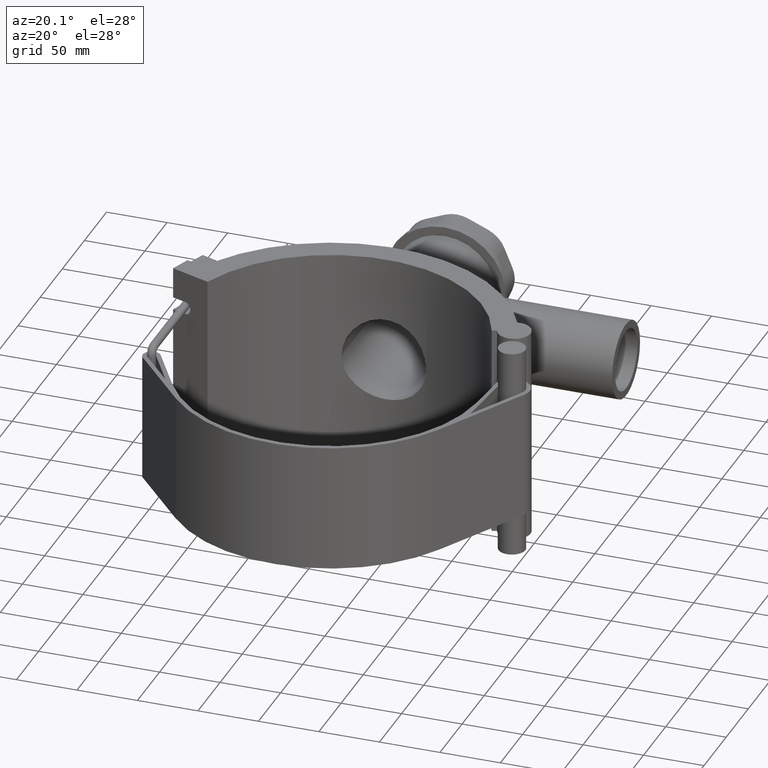
[diagram: clean part render]
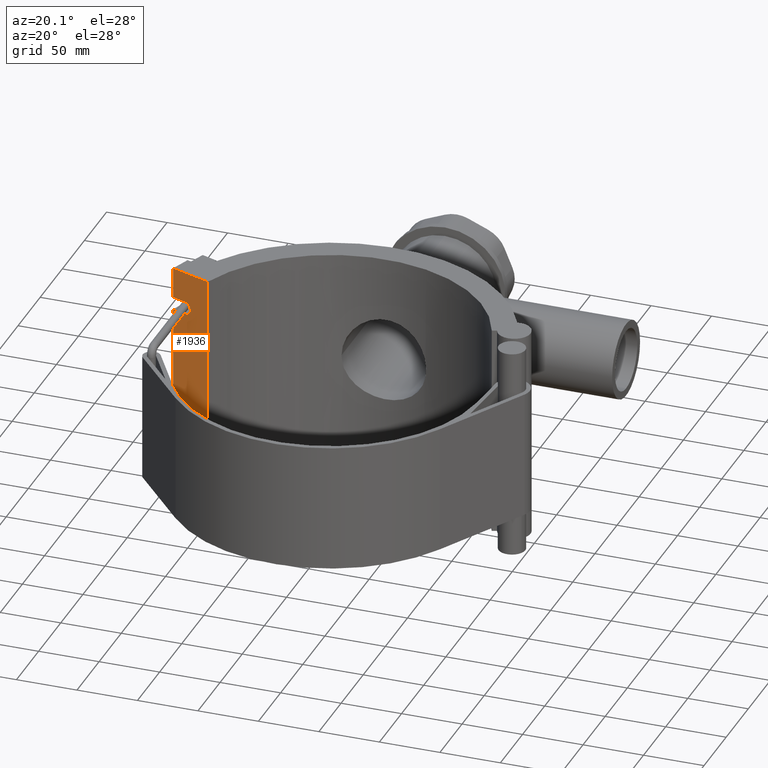
[diagram: same view with one face highlighted and labeled with its STEP entity id]
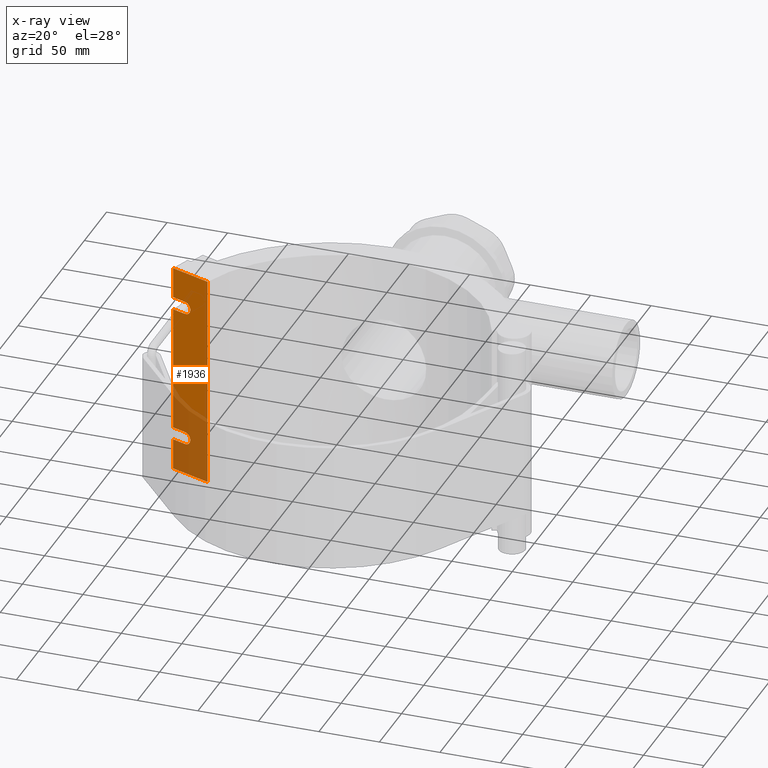
[diagram: x-ray of the same camera — body ghosted, the highlighted face saturated]
A machine part, auxiliary view. The second image highlights one B-rep face of the part: STEP entity #1936.
The next image is the same camera in x-ray: the body ghosted, the highlighted face saturated — about 34% of this face is hidden behind the body in this view.
In plain terms, the highlighted planar face has unit normal (0.342, 0.9397, 0).
Its self-contained STEP definition (entity closure, byte-faithful):
#18=ELLIPSE('',#2098,3.72462220366566,3.49999999999997);
#25=ELLIPSE('',#2109,3.72462220366566,3.49999999999997);
#125=LINE('',#3449,#286);
#133=LINE('',#3470,#294);
#136=LINE('',#3476,#297);
#137=LINE('',#3478,#298);
#138=LINE('',#3480,#299);
#139=LINE('',#3482,#300);
#140=LINE('',#3483,#301);
#141=LINE('',#3487,#302);
#142=LINE('',#3489,#303);
#143=LINE('',#3491,#304);
#286=VECTOR('',#2530,11.7719802793205);
#294=VECTOR('',#2552,11.7719802793212);
#297=VECTOR('',#2557,25.55);
#298=VECTOR('',#2558,34.9999999999998);
#299=VECTOR('',#2559,176.);
#300=VECTOR('',#2560,34.9999999999999);
#301=VECTOR('',#2561,25.55);
#302=VECTOR('',#2564,12.2499999999999);
#303=VECTOR('',#2565,103.9);
#304=VECTOR('',#2566,12.2499999999998);
#515=FACE_OUTER_BOUND('',#655,.T.);
#655=EDGE_LOOP('',(#1547,#1548,#1549,#1550,#1551,#1552,#1553,#1554,#1555,
#1556,#1557,#1558,#1559,#1560));
#787=CIRCLE('',#2121,5.25);
#788=CIRCLE('',#2122,5.25);
#914=VERTEX_POINT('',#3395);
#916=VERTEX_POINT('',#3398);
#925=VERTEX_POINT('',#3423);
#928=VERTEX_POINT('',#3430);
#933=VERTEX_POINT('',#3447);
#939=VERTEX_POINT('',#3469);
#941=VERTEX_POINT('',#3475);
#942=VERTEX_POINT('',#3477);
#943=VERTEX_POINT('',#3479);
#944=VERTEX_POINT('',#3481);
#945=VERTEX_POINT('',#3484);
#946=VERTEX_POINT('',#3486);
#947=VERTEX_POINT('',#3488);
#948=VERTEX_POINT('',#3490);
#1131=EDGE_CURVE('',#916,#914,#18,.T.);
#1146=EDGE_CURVE('',#925,#928,#25,.T.);
#1153=EDGE_CURVE('',#914,#933,#125,.T.);
#1163=EDGE_CURVE('',#939,#925,#133,.T.);
#1166=EDGE_CURVE('',#941,#933,#136,.T.);
#1167=EDGE_CURVE('',#942,#941,#137,.T.);
#1168=EDGE_CURVE('',#943,#942,#138,.T.);
#1169=EDGE_CURVE('',#944,#943,#139,.T.);
#1170=EDGE_CURVE('',#939,#944,#140,.T.);
#1171=EDGE_CURVE('',#928,#945,#787,.T.);
#1172=EDGE_CURVE('',#945,#946,#141,.T.);
#1173=EDGE_CURVE('',#947,#946,#142,.T.);
#1174=EDGE_CURVE('',#947,#948,#143,.T.);
#1175=EDGE_CURVE('',#948,#916,#788,.T.);
#1547=ORIENTED_EDGE('',*,*,#1131,.T.);
#1548=ORIENTED_EDGE('',*,*,#1153,.T.);
#1549=ORIENTED_EDGE('',*,*,#1166,.F.);
#1550=ORIENTED_EDGE('',*,*,#1167,.F.);
#1551=ORIENTED_EDGE('',*,*,#1168,.F.);
#1552=ORIENTED_EDGE('',*,*,#1169,.F.);
#1553=ORIENTED_EDGE('',*,*,#1170,.F.);
#1554=ORIENTED_EDGE('',*,*,#1163,.T.);
#1555=ORIENTED_EDGE('',*,*,#1146,.T.);
#1556=ORIENTED_EDGE('',*,*,#1171,.T.);
#1557=ORIENTED_EDGE('',*,*,#1172,.T.);
#1558=ORIENTED_EDGE('',*,*,#1173,.F.);
#1559=ORIENTED_EDGE('',*,*,#1174,.T.);
#1560=ORIENTED_EDGE('',*,*,#1175,.T.);
#1840=PLANE('',#2120);
#1936=ADVANCED_FACE('',(#515),#1840,.F.);
#2098=AXIS2_PLACEMENT_3D('',#3399,#2490,#2491);
#2109=AXIS2_PLACEMENT_3D('',#3435,#2517,#2518);
#2120=AXIS2_PLACEMENT_3D('',#3474,#2555,#2556);
#2121=AXIS2_PLACEMENT_3D('',#3485,#2562,#2563);
#2122=AXIS2_PLACEMENT_3D('',#3492,#2567,#2568);
#2490=DIRECTION('center_axis',(0.342020143325669,0.939692620785908,0.));
#2491=DIRECTION('ref_axis',(-0.939692620785908,0.342020143325669,-2.26097653887931E-17));
#2517=DIRECTION('center_axis',(0.342020143325669,0.939692620785908,0.));
#2518=DIRECTION('ref_axis',(-0.939692620785908,0.342020143325669,-2.26097653887931E-17));
#2530=DIRECTION('',(-0.939692620785908,0.342020143325669,1.02963983255052E-17));
#2552=DIRECTION('',(0.939692620785908,-0.342020143325669,1.91562333424523E-16));
#2555=DIRECTION('center_axis',(0.342020143325669,0.939692620785908,0.));
#2556=DIRECTION('ref_axis',(0.939692620785909,-0.342020143325669,0.));
#2557=DIRECTION('',(0.,0.,1.));
#2558=DIRECTION('',(-0.939692620785908,0.342020143325669,0.));
#2559=DIRECTION('',(0.,0.,-1.));
#2560=DIRECTION('',(0.939692620785908,-0.342020143325669,0.));
#2561=DIRECTION('',(0.,0.,1.));
#2562=DIRECTION('center_axis',(0.342020143325669,0.939692620785908,0.));
#2563=DIRECTION('ref_axis',(0.939692620785908,-0.342020143325669,-7.75826422421813E-17));
#2564=DIRECTION('',(-0.939692620785908,0.342020143325669,7.75826422421813E-17));
#2565=DIRECTION('',(0.,0.,1.));
#2566=DIRECTION('',(0.939692620785908,-0.342020143325669,-1.02963983255052E-17));
#2567=DIRECTION('center_axis',(0.342020143325669,0.939692620785908,0.));
#2568=DIRECTION('ref_axis',(0.939692620785908,-0.342020143325669,-7.75826422421813E-17));
#3395=CARTESIAN_POINT('',(-139.28877632523,50.6969685497468,-62.45));
#3398=CARTESIAN_POINT('',(-138.748427487452,50.5002976566752,-62.449103689639));
#3399=CARTESIAN_POINT('Origin',(-139.024390243902,50.6007398857891,-58.96));
#3423=CARTESIAN_POINT('',(-139.28877632523,50.6969685497466,62.45));
#3430=CARTESIAN_POINT('',(-138.748427487453,50.5002976566754,62.449103689639));
#3435=CARTESIAN_POINT('Origin',(-139.024390243902,50.6007398857891,58.96));
#3447=CARTESIAN_POINT('',(-150.350819325745,54.723222932107,-62.45));
#3449=CARTESIAN_POINT('',(-137.711953576175,50.1230520043768,-62.45));
#3469=CARTESIAN_POINT('',(-150.350819325745,54.723222932107,62.45));
#3470=CARTESIAN_POINT('',(-168.72181006211,61.4097167341239,62.45));
#3474=CARTESIAN_POINT('Origin',(-136.584322431232,49.712627832386,88.));
#3475=CARTESIAN_POINT('',(-150.350819325745,54.7232229321069,-88.));
#3476=CARTESIAN_POINT('',(-150.350819325745,54.7232229321069,-88.));
#3477=CARTESIAN_POINT('',(-117.461577598239,42.7525179157086,-88.));
#3478=CARTESIAN_POINT('',(-135.969639232124,49.4889014444071,-88.));
#3479=CARTESIAN_POINT('',(-117.461577598239,42.7525179157086,88.));
#3480=CARTESIAN_POINT('',(-117.461577598239,42.7525179157086,0.));
#3481=CARTESIAN_POINT('',(-150.350819325745,54.7232229321069,88.));
#3482=CARTESIAN_POINT('',(-135.969639232124,49.4889014444071,88.));
#3483=CARTESIAN_POINT('',(-150.350819325745,54.7232229321069,-88.));
#3484=CARTESIAN_POINT('',(-138.839584721118,50.5334761763676,51.95));
#3485=CARTESIAN_POINT('Origin',(-138.839584721118,50.5334761763676,57.2));
#3486=CARTESIAN_POINT('',(-150.350819325745,54.723222932107,51.95));
#3487=CARTESIAN_POINT('',(-137.711953576175,50.1230520043768,51.95));
#3488=CARTESIAN_POINT('',(-150.350819325745,54.723222932107,-51.95));
#3489=CARTESIAN_POINT('',(-150.350819325745,54.7232229321069,-88.));
#3490=CARTESIAN_POINT('',(-138.839584721118,50.5334761763676,-51.95));
#3491=CARTESIAN_POINT('',(-168.72181006211,61.4097167341239,-51.95));
#3492=CARTESIAN_POINT('Origin',(-138.839584721118,50.5334761763676,-57.2));